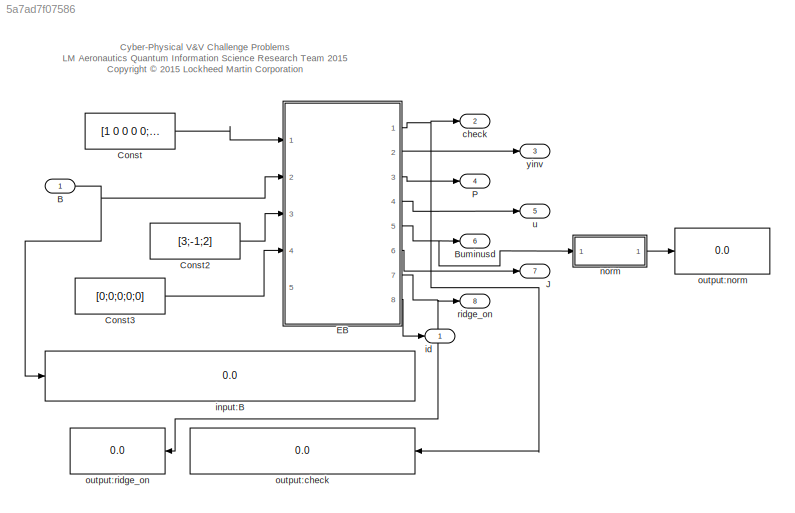
MODEL slx_5a7ad7f07586
KIND model
CONFIG AbsTol = auto
CONFIG EnableMultiTasking = on
CONFIG FixedStep = .01
CONFIG MaxStep = auto
CONFIG MinStep = auto
CONFIG RelTol = 1e-3
CONFIG SampleTimeConstraint = Unconstrained
CONFIG SolverName = ode3
CONFIG StartTime = 0.0
CONFIG StopTime = 0
WORKSPACE source: mxarray member
WORKSPACE I = [1 0 0 0 1 0 0 0 1]
WORKSPACE I0 = [0 0 0 0 0 0 0 0 0]
WORKSPACE N = 18
WORKSPACE Wp = [1 0 0 0 0 0 1 0 0 0 0 0 ... (25 elements, 5x5)]
WORKSPACE X = [-0.000916135593528 0.000741784354662 -0.000111198836647 -0.000114918934981 -0.000338802758293 0.00087934621238 0.000425682524619 0.000877814042518 6.19118807071e-05 -0.000956394036441 0.000640782162368 -0.000425007884451 ... (15 elements, 1x15)]
WORKSPACE cmd: object (value not decoded)
WORKSPACE cs: handle (value not decoded)
WORKSPACE curPath = '<userpath>/Documents/Projects/QRA-LocalSearch/Local Search Algorithms/Problems'
WORKSPACE d = 16
WORKSPACE hws = [3707764736 2 1 1 1 1]
WORKSPACE i = 7
WORKSPACE j = 5
WORKSPACE list: object (value not decoded)
WORKSPACE model_cs: handle (value not decoded)
WORKSPACE modelpath = '<userpath>/Documents/Projects/QRA-LocalSearch/Simulink Models/6_eb/'
WORKSPACE req = 'R2'
WORKSPACE simOut: Simulink.SimulationOutput (value not decoded)
WORKSPACE tout = 0
WORKSPACE up = [0 0 0 0 0]
WORKSPACE var: object (value not decoded)
WORKSPACE varout: object (value not decoded)
WORKSPACE vars: object (value not decoded)
BLOCK [Inport] B
  OutDataTypeStr = double
  PortDimensions = [3 5]
BLOCK [Outport] Buminusd
  Port = 6
  VectorParamsAs1DForOutWhenUnconnected = off
BLOCK [Constant] Const
  Value = [1 0 0 0 0;0 1 0 0 0;0 0 1 0 0;0 0 0 1 0;0 0 0 0 1]
BLOCK [Constant] Const2
  Value = [3;-1;2]
BLOCK [Constant] Const3
  Value = [0;0;0;0;0]
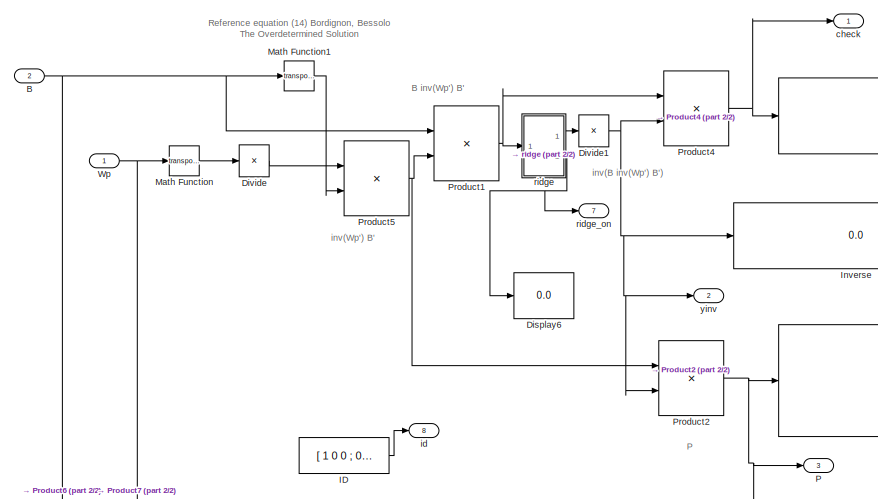
[diagram: EB - part 1/2, top left region]
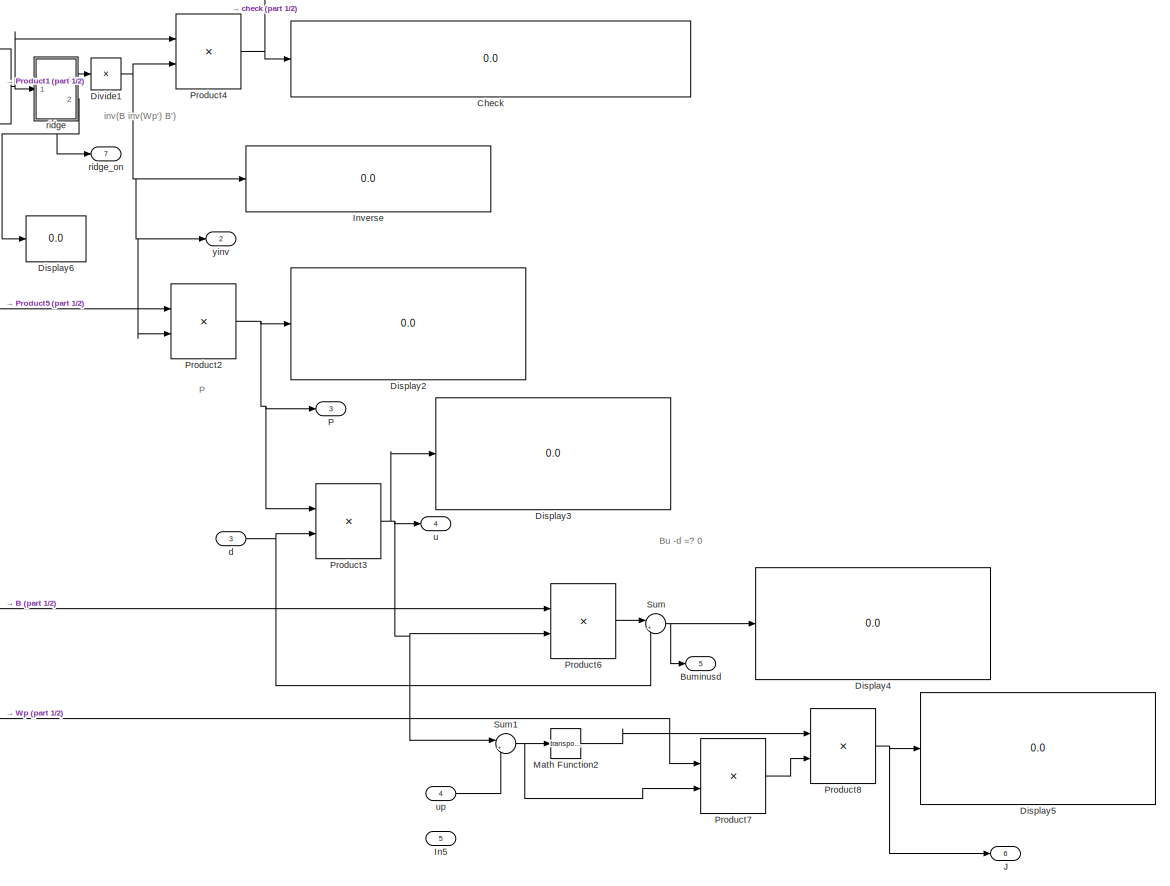
[diagram: EB - part 2/2, center side, full height]
BLOCK [SubSystem] EB
  Ports = [5, 8]
  RequestExecContextInheritance = off
BLOCK [Inport] EB/B
  Port = 2
BLOCK [Outport] EB/Buminusd
  Port = 5
  VectorParamsAs1DForOutWhenUnconnected = off
BLOCK [Display] EB/Check
  Decimation = 15
  Format = long
  Ports = [1]
BLOCK [Display] EB/Display2
  Decimation = 1
  Ports = [1]
BLOCK [Display] EB/Display3
  Decimation = 1
  Ports = [1]
BLOCK [Display] EB/Display4
  Decimation = 1
  Ports = [1]
BLOCK [Display] EB/Display5
  Decimation = 1
  Ports = [1]
BLOCK [Display] EB/Display6
  Decimation = 1
  Ports = [1]
BLOCK [Product] EB/Divide
  Inputs = /
  Multiplication = Matrix(*)
  Ports = [1, 1]
BLOCK [Product] EB/Divide1
  Inputs = /
  Multiplication = Matrix(*)
  Ports = [1, 1]
BLOCK [Constant] EB/ID
  Value = [ 1 0 0 ; 0 1 0 ; 0 0 1 ]
BLOCK [Inport] EB/In5
  Port = 5
BLOCK [Display] EB/Inverse
  Decimation = 1
  Ports = [1]
BLOCK [Outport] EB/J
  Port = 6
  VectorParamsAs1DForOutWhenUnconnected = off
BLOCK [Math] EB/Math Function
  Operator = transpose
  Ports = [1, 1]
  SignedPower = on
BLOCK [Math] EB/Math Function1
  Operator = transpose
  Ports = [1, 1]
  SignedPower = on
BLOCK [Math] EB/Math Function2
  Operator = transpose
  Ports = [1, 1]
  SignedPower = on
BLOCK [Outport] EB/P
  Port = 3
  VectorParamsAs1DForOutWhenUnconnected = off
BLOCK [Product] EB/Product1
  Multiplication = Matrix(*)
  Ports = [2, 1]
BLOCK [Product] EB/Product2
  Multiplication = Matrix(*)
  Ports = [2, 1]
BLOCK [Product] EB/Product3
  Multiplication = Matrix(*)
  Ports = [2, 1]
BLOCK [Product] EB/Product4
  Multiplication = Matrix(*)
  Ports = [2, 1]
BLOCK [Product] EB/Product5
  Multiplication = Matrix(*)
  Ports = [2, 1]
BLOCK [Product] EB/Product6
  Multiplication = Matrix(*)
  Ports = [2, 1]
BLOCK [Product] EB/Product7
  Multiplication = Matrix(*)
  Ports = [2, 1]
BLOCK [Product] EB/Product8
  Multiplication = Matrix(*)
  Ports = [2, 1]
BLOCK [Sum] EB/Sum
  Inputs = |+-
  Ports = [2, 1]
BLOCK [Sum] EB/Sum1
  Inputs = |+-
  Ports = [2, 1]
BLOCK [Inport] EB/Wp
BLOCK [Outport] EB/check
  VectorParamsAs1DForOutWhenUnconnected = off
BLOCK [Inport] EB/d
  Port = 3
BLOCK [Outport] EB/id
  Port = 8
  VectorParamsAs1DForOutWhenUnconnected = off
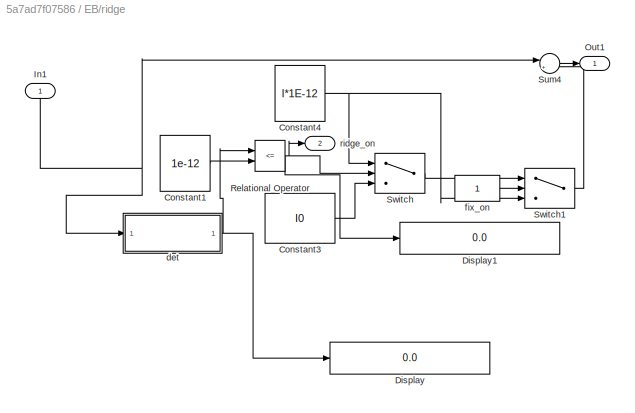
BLOCK [SubSystem] EB/ridge
  Ports = [1, 2]
  RequestExecContextInheritance = off
BLOCK [Constant] EB/ridge/Constant1
  Value = 1e-12
BLOCK [Constant] EB/ridge/Constant3
  Value = I0
BLOCK [Constant] EB/ridge/Constant4
  Value = I*1E-12
BLOCK [Display] EB/ridge/Display
  Decimation = 1
  Ports = [1]
BLOCK [Display] EB/ridge/Display1
  Decimation = 1
  Ports = [1]
BLOCK [Inport] EB/ridge/In1
  NameLocation = right
BLOCK [Outport] EB/ridge/Out1
  VectorParamsAs1DForOutWhenUnconnected = off
BLOCK [RelationalOperator] EB/ridge/Relational Operator
  InputSameDT = off
  Operator = <=
  OutDataTypeStr = boolean
  Ports = [2, 1]
BLOCK [Sum] EB/ridge/Sum4
  Inputs = |++
  Ports = [2, 1]
BLOCK [Switch] EB/ridge/Switch
  Criteria = u2 ~= 0
  InputSameDT = off
  SaturateOnIntegerOverflow = off
  Threshold = 1e-5
BLOCK [Switch] EB/ridge/Switch1
  InputSameDT = off
  SaturateOnIntegerOverflow = off
  Threshold = 1e-1
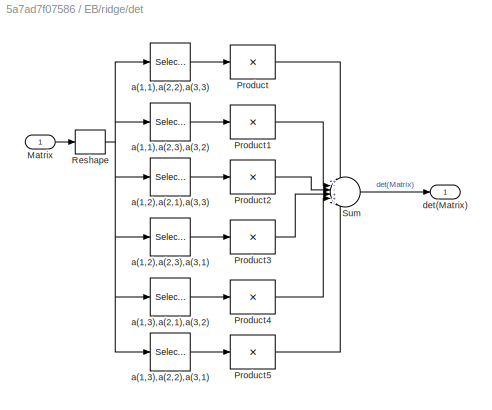
BLOCK [SubSystem] EB/ridge/det
  Ports = [1, 1]
  RequestExecContextInheritance = off
BLOCK [Inport] EB/ridge/det/Matrix
  PortDimensions = [3 3]
BLOCK [Product] EB/ridge/det/Product
  Inputs = 1
  OutDataTypeStr = Inherit: Same as first input
  Ports = [1, 1]
  SaturateOnIntegerOverflow = on
BLOCK [Product] EB/ridge/det/Product1
  Inputs = 1
  OutDataTypeStr = Inherit: Same as first input
  Ports = [1, 1]
  SaturateOnIntegerOverflow = on
BLOCK [Product] EB/ridge/det/Product2
  Inputs = 1
  OutDataTypeStr = Inherit: Same as first input
  Ports = [1, 1]
  SaturateOnIntegerOverflow = on
BLOCK [Product] EB/ridge/det/Product3
  Inputs = 1
  OutDataTypeStr = Inherit: Same as first input
  Ports = [1, 1]
  SaturateOnIntegerOverflow = on
BLOCK [Product] EB/ridge/det/Product4
  Inputs = 1
  OutDataTypeStr = Inherit: Same as first input
  Ports = [1, 1]
  SaturateOnIntegerOverflow = on
BLOCK [Product] EB/ridge/det/Product5
  Inputs = 1
  OutDataTypeStr = Inherit: Same as first input
  Ports = [1, 1]
  SaturateOnIntegerOverflow = on
BLOCK [Reshape] EB/ridge/det/Reshape
  OutputDimensionality = Column vector (2-D)
  Ports = [1, 1]
BLOCK [Sum] EB/ridge/det/Sum
  Inputs = +--++-
  Ports = [6, 1]
  SaturateOnIntegerOverflow = on
BLOCK [Selector] EB/ridge/det/a(1,1),a(2,2),a(3,3)
  IndexOptions = Index vector (dialog)
  Indices = [1 5 9]
  InputPortWidth = 9
  OutputSizes = 1
  Ports = [1, 1]
BLOCK [Selector] EB/ridge/det/a(1,1),a(2,3),a(3,2)
  IndexOptions = Index vector (dialog)
  Indices = [1 6 8]
  InputPortWidth = 9
  OutputSizes = 1
  Ports = [1, 1]
BLOCK [Selector] EB/ridge/det/a(1,2),a(2,1),a(3,3)
  IndexOptions = Index vector (dialog)
  Indices = [2 4 9]
  InputPortWidth = 9
  OutputSizes = 1
  Ports = [1, 1]
BLOCK [Selector] EB/ridge/det/a(1,2),a(2,3),a(3,1)
  IndexOptions = Index vector (dialog)
  Indices = [3 4 8]
  InputPortWidth = 9
  OutputSizes = 1
  Ports = [1, 1]
BLOCK [Selector] EB/ridge/det/a(1,3),a(2,1),a(3,2)
  IndexOptions = Index vector (dialog)
  Indices = [2 6 7]
  InputPortWidth = 9
  OutputSizes = 1
  Ports = [1, 1]
BLOCK [Selector] EB/ridge/det/a(1,3),a(2,2),a(3,1)
  IndexOptions = Index vector (dialog)
  Indices = [3 5 7]
  InputPortWidth = 9
  OutputSizes = 1
  Ports = [1, 1]
BLOCK [Outport] EB/ridge/det/det(Matrix)
  PortDimensions = 1
  VectorParamsAs1DForOutWhenUnconnected = off
BLOCK [Constant] EB/ridge/fix_on
BLOCK [Outport] EB/ridge/ridge_on
  Port = 2
  VectorParamsAs1DForOutWhenUnconnected = off
BLOCK [Outport] EB/ridge_on
  Port = 7
  VectorParamsAs1DForOutWhenUnconnected = off
BLOCK [Outport] EB/u
  Port = 4
  VectorParamsAs1DForOutWhenUnconnected = off
BLOCK [Inport] EB/up
  Port = 4
BLOCK [Outport] EB/yinv
  Port = 2
  VectorParamsAs1DForOutWhenUnconnected = off
BLOCK [Outport] J
  Port = 7
  VectorParamsAs1DForOutWhenUnconnected = off
BLOCK [Outport] P
  Port = 4
  VectorParamsAs1DForOutWhenUnconnected = off
BLOCK [Outport] check
  Port = 2
  VectorParamsAs1DForOutWhenUnconnected = off
BLOCK [Outport] id
  VectorParamsAs1DForOutWhenUnconnected = off
BLOCK [Display] input:B
  Decimation = 6
  Ports = [1]
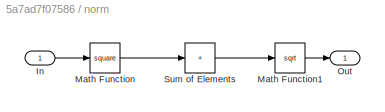
BLOCK [SubSystem] norm
  Ports = [1, 1]
  RequestExecContextInheritance = off
BLOCK [Inport] norm/In
BLOCK [Math] norm/Math Function
  Operator = square
  Ports = [1, 1]
  SignedPower = on
BLOCK [Math] norm/Math Function1
  Operator = sqrt
  Ports = [1, 1]
  SignedPower = on
BLOCK [Outport] norm/Out
  VectorParamsAs1DForOutWhenUnconnected = off
BLOCK [Sum] norm/Sum of Elements
  IconShape = rectangular
  Inputs = +
  Ports = [1, 1]
BLOCK [Display] output:check
  Decimation = 6
  Ports = [1]
BLOCK [Display] output:norm
  Decimation = 6
  Ports = [1]
BLOCK [Display] output:ridge_on
  Decimation = 6
  Ports = [1]
BLOCK [Outport] ridge_on
  Port = 8
  VectorParamsAs1DForOutWhenUnconnected = off
BLOCK [Outport] u
  Port = 5
  VectorParamsAs1DForOutWhenUnconnected = off
BLOCK [Outport] yinv
  Port = 3
  VectorParamsAs1DForOutWhenUnconnected = off
ANNOTATION (root): Cyber-Physical V&V Challenge Problems LM Aeronautics Quantum Information Science Research Team 2015 <copyright redacted>
ANNOTATION EB: B inv(Wp') B'
ANNOTATION EB: Bu -d =? 0
ANNOTATION EB: P
ANNOTATION EB: Reference equation (14) Bordignon, Bessolo The Overdetermined Solution
ANNOTATION EB: inv(B inv(Wp') B')
ANNOTATION EB: inv(Wp') B'
NET B:1 -> EB:2, input:B:1
LINE Const2:1 -> EB:3
LINE Const3:1 -> EB:4
LINE Const:1 -> EB:1
NET EB/B:1 -> EB/Math Function1:1, EB/Product1:1, EB/Product6:1
NET EB/Divide1:1 -> EB/Inverse:1, EB/Product2:2, EB/Product4:2, EB/yinv:1
LINE EB/Divide:1 -> EB/Product5:1
LINE EB/ID:1 -> EB/id:1
LINE EB/Math Function1:1 -> EB/Product5:2
LINE EB/Math Function2:1 -> EB/Product8:1
LINE EB/Math Function:1 -> EB/Divide:1
NET EB/Product1:1 -> EB/Product4:1, EB/ridge:1
NET EB/Product2:1 -> EB/Display2:1, EB/P:1, EB/Product3:1
NET EB/Product3:1 -> EB/Display3:1, EB/Product6:2, EB/Sum1:1, EB/u:1
NET EB/Product4:1 -> EB/Check:1, EB/check:1
NET EB/Product5:1 -> EB/Product1:2, EB/Product2:1
LINE EB/Product6:1 -> EB/Sum:1
LINE EB/Product7:1 -> EB/Product8:2
NET EB/Product8:1 -> EB/Display5:1, EB/J:1
NET EB/Sum1:1 -> EB/Math Function2:1, EB/Product7:2
NET EB/Sum:1 -> EB/Buminusd:1, EB/Display4:1
NET EB/Wp:1 -> EB/Math Function:1, EB/Product7:1
NET EB/d:1 -> EB/Product3:2, EB/Sum:2
LINE EB/ridge/Constant1:1 -> EB/ridge/Relational Operator:2
LINE EB/ridge/Constant3:1 -> EB/ridge/Switch:3
NET EB/ridge/Constant4:1 -> EB/ridge/Switch1:3, EB/ridge/Switch:1
NET EB/ridge/In1:1 -> EB/ridge/Sum4:1, EB/ridge/det:1
NET EB/ridge/Relational Operator:1 -> EB/ridge/Display1:1, EB/ridge/Switch:2, EB/ridge/ridge_on:1
LINE EB/ridge/Sum4:1 -> EB/ridge/Out1:1
LINE EB/ridge/Switch1:1 -> EB/ridge/Sum4:2
LINE EB/ridge/Switch:1 -> EB/ridge/Switch1:1
LINE EB/ridge/det/Matrix:1 -> EB/ridge/det/Reshape:1
LINE EB/ridge/det/Product1:1 -> EB/ridge/det/Sum:2
LINE EB/ridge/det/Product2:1 -> EB/ridge/det/Sum:3
LINE EB/ridge/det/Product3:1 -> EB/ridge/det/Sum:4
LINE EB/ridge/det/Product4:1 -> EB/ridge/det/Sum:5
LINE EB/ridge/det/Product5:1 -> EB/ridge/det/Sum:6
LINE EB/ridge/det/Product:1 -> EB/ridge/det/Sum:1
NET EB/ridge/det/Reshape:1 -> EB/ridge/det/a(1,1),a(2,2),a(3,3):1, EB/ridge/det/a(1,1),a(2,3),a(3,2):1, EB/ridge/det/a(1,2),a(2,1),a(3,3):1, EB/ridge/det/a(1,2),a(2,3),a(3,1):1, EB/ridge/det/a(1,3),a(2,1),a(3,2):1, EB/ridge/det/a(1,3),a(2,2),a(3,1):1
LINE EB/ridge/det/Sum:1 -> EB/ridge/det/det(Matrix):1
LINE EB/ridge/det/a(1,1),a(2,2),a(3,3):1 -> EB/ridge/det/Product:1
LINE EB/ridge/det/a(1,1),a(2,3),a(3,2):1 -> EB/ridge/det/Product1:1
LINE EB/ridge/det/a(1,2),a(2,1),a(3,3):1 -> EB/ridge/det/Product2:1
LINE EB/ridge/det/a(1,2),a(2,3),a(3,1):1 -> EB/ridge/det/Product3:1
LINE EB/ridge/det/a(1,3),a(2,1),a(3,2):1 -> EB/ridge/det/Product4:1
LINE EB/ridge/det/a(1,3),a(2,2),a(3,1):1 -> EB/ridge/det/Product5:1
NET EB/ridge/det:1 -> EB/ridge/Display:1, EB/ridge/Relational Operator:1
LINE EB/ridge/fix_on:1 -> EB/ridge/Switch1:2
LINE EB/ridge:1 -> EB/Divide1:1
NET EB/ridge:2 -> EB/Display6:1, EB/ridge_on:1
LINE EB/up:1 -> EB/Sum1:2
NET EB:1 -> check:1, output:check:1
LINE EB:2 -> yinv:1
LINE EB:3 -> P:1
LINE EB:4 -> u:1
NET EB:5 -> Buminusd:1, norm:1
LINE EB:6 -> J:1
NET EB:7 -> output:ridge_on:1, ridge_on:1
LINE EB:8 -> id:1
LINE norm/In:1 -> norm/Math Function:1
LINE norm/Math Function1:1 -> norm/Out:1
LINE norm/Math Function:1 -> norm/Sum of Elements:1
LINE norm/Sum of Elements:1 -> norm/Math Function1:1
LINE norm:1 -> output:norm:1
note: NET lines group one-source signal fan-out (src -> all destinations, sorted); 1:1 wires keep LINE
